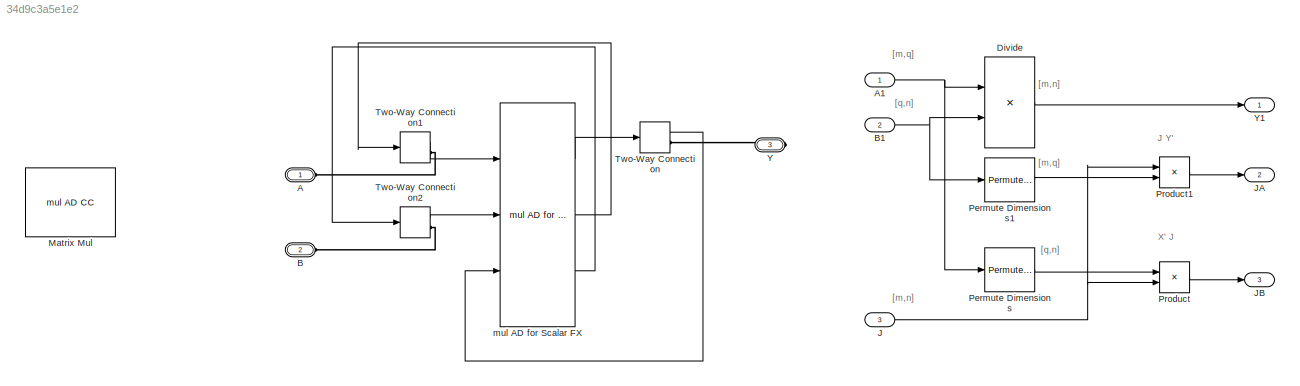
MODEL slx_34d9c3a5e1e2
KIND model
CONFIG AbsTol = auto
CONFIG EnableMultiTasking = off
CONFIG FixedStep = auto
CONFIG MaxStep = auto
CONFIG MinStep = auto
CONFIG RelTol = 1e-3
CONFIG SampleTimeConstraint = Unconstrained
CONFIG Solver = VariableStepAuto
CONFIG SolverName = VariableStepAuto
CONFIG StartTime = 0.0
CONFIG StopTime = 10.0
BLOCK [PMIOPort] A
  Port = 1
  Side = Left
BLOCK [Inport] A1
  IconDisplay = Port number
BLOCK [PMIOPort] B
  Port = 2
  Side = Left
BLOCK [Inport] B1
  IconDisplay = Port number
  Port = 2
BLOCK [Product] Divide
  InputSameDT = off
  Inputs = **
  Multiplication = Matrix(*)
  OutDataTypeStr = Inherit: Inherit via internal rule
  Ports = [2, 1]
  RndMeth = Floor
  SaturateOnIntegerOverflow = off
BLOCK [Inport] J
  IconDisplay = Port number
  Port = 3
BLOCK [Outport] JA
  IconDisplay = Port number
  Port = 2
BLOCK [Outport] JB
  IconDisplay = Port number
  Port = 3
BLOCK [Reference] Matrix Mul  REF=ad_blocks/mul AD CC  (lib defined in slx_3af8d3de87d3)
  Ports = [0, 0, 0, 0, 0, 2, 1]
  SourceBlock = ad_blocks/mul AD CC
  SourceType = SubSystem
BLOCK [PermuteDimensions] Permute Dimensions
BLOCK [PermuteDimensions] Permute Dimensions1
BLOCK [Product] Product
  InputSameDT = off
  Multiplication = Matrix(*)
  OutDataTypeStr = Inherit: Inherit via internal rule
  Ports = [2, 1]
  RndMeth = Floor
  SaturateOnIntegerOverflow = off
BLOCK [Product] Product1
  InputSameDT = off
  Multiplication = Matrix(*)
  OutDataTypeStr = Inherit: Inherit via internal rule
  Ports = [2, 1]
  RndMeth = Floor
  SaturateOnIntegerOverflow = off
BLOCK [TwoWayConnection] Two-Way Connection
  Ports = [1, 1, 0, 0, 0, 0, 1]
BLOCK [TwoWayConnection] Two-Way Connection1
  Ports = [1, 1, 0, 0, 0, 0, 1]
BLOCK [TwoWayConnection] Two-Way Connection2
  Ports = [1, 1, 0, 0, 0, 0, 1]
BLOCK [PMIOPort] Y
  Port = 3
  Side = Right
BLOCK [Outport] Y1
  IconDisplay = Port number
BLOCK [Reference] mul AD for Scalar FX  REF=ad_blocks/mul AD for Scalar FX  (lib defined in slx_3af8d3de87d3)
  Ports = [3, 3]
  SourceBlock = ad_blocks/mul AD for Scalar FX
  SourceType = SubSystem
ANNOTATION (root): J Y'
ANNOTATION (root): X' J
ANNOTATION (root): [m,n]
ANNOTATION (root): [m,q]
ANNOTATION (root): [q,n]
NET A1:1 -> Divide:1, Permute Dimensions:1
NET B1:1 -> Divide:2, Permute Dimensions1:1
LINE Divide:1 -> Y1:1
NET J:1 -> Product1:1, Product:2
LINE Permute Dimensions1:1 -> Product1:2
LINE Permute Dimensions:1 -> Product:1
LINE Product1:1 -> JA:1
LINE Product:1 -> JB:1
LINE Two-Way Connection1:1 -> mul AD for Scalar FX:1
LINE Two-Way Connection2:1 -> mul AD for Scalar FX:2
LINE Two-Way Connection:1 -> mul AD for Scalar FX:3
LINE mul AD for Scalar FX:1 -> Two-Way Connection:1
LINE mul AD for Scalar FX:2 -> Two-Way Connection1:1
LINE mul AD for Scalar FX:3 -> Two-Way Connection2:1
PLINE A:RConn1 -- Two-Way Connection1:RConn1
PLINE B:RConn1 -- Two-Way Connection2:RConn1
PLINE Two-Way Connection:RConn1 -- Y:RConn1
note: NET lines group one-source signal fan-out (src -> all destinations, sorted); 1:1 wires keep LINE
